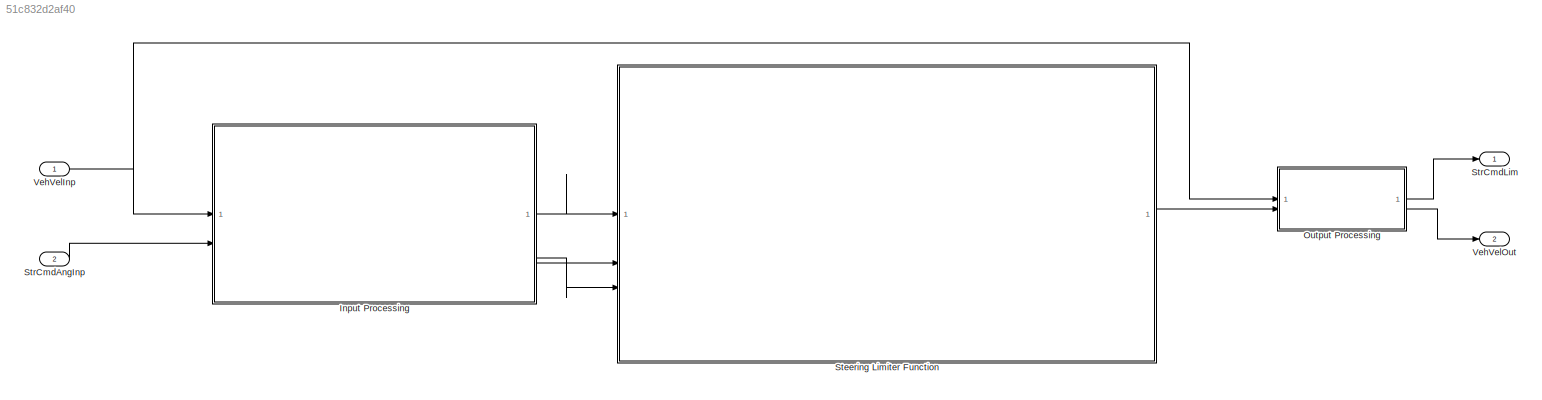
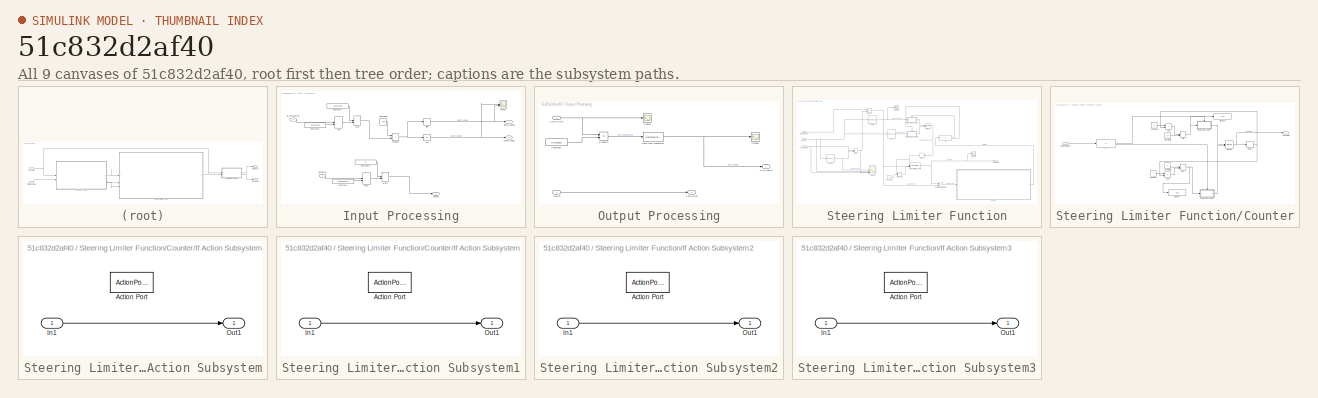
[diagram: thumbnail index - all 9 canvases of the model, root first then tree order]
MODEL slx_51c832d2af40
KIND model
CONFIG AbsTol = auto
CONFIG EnableMultiTasking = off
CONFIG FixedStep = 0.01
CONFIG InitFcn = , if any(exist('rtifpga_mdlclblib', 'file') ~= 0), rtifpga_mdlclblib('Init', bdroot); end,\n, if any(exist('dsmpb_private', 'file') ~= 0), dsmpb_private('dsmpb_mdlclblib', 'Init', bdroot); end,\n
CONFIG MaxStep = auto
CONFIG MinStep = auto
CONFIG PostLoadFcn = if any(exist('dsrtsu_mdlpostloadfcn', 'file') ~= 0), dsrtsu_mdlpostloadfcn('Execute', bdroot); end
CONFIG RelTol = 1e-3
CONFIG SampleTimeConstraint = Unconstrained
CONFIG SolverName = FixedStepDiscrete
CONFIG StartTime = 0.0
CONFIG StopTime = 1
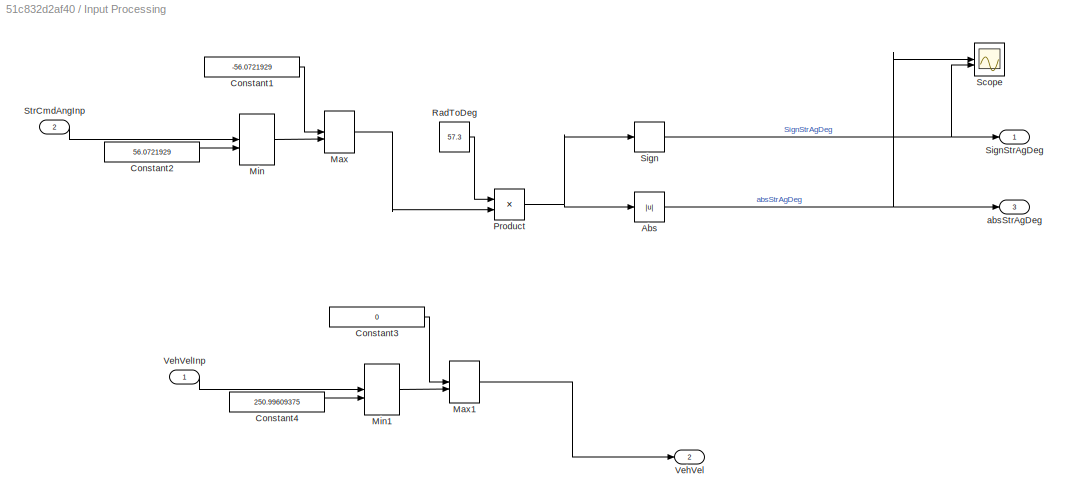
BLOCK [SubSystem] Input Processing
BLOCK [Abs] Input Processing/Abs
  SaturateOnIntegerOverflow = off
BLOCK [Constant] Input Processing/Constant1
  Value = -56.0721929
BLOCK [Constant] Input Processing/Constant2
  Value = 56.0721929
BLOCK [Constant] Input Processing/Constant3
  Value = 0
BLOCK [Constant] Input Processing/Constant4
  Value = 250.99609375
BLOCK [MinMax] Input Processing/Max
  Function = max
  Inputs = 2
BLOCK [MinMax] Input Processing/Max1
  Function = max
  Inputs = 2
BLOCK [MinMax] Input Processing/Min
  Inputs = 2
BLOCK [MinMax] Input Processing/Min1
  Inputs = 2
BLOCK [Product] Input Processing/Product
BLOCK [Constant] Input Processing/RadToDeg
  Value = 57.3
BLOCK [Scope] Input Processing/Scope
  Floating = off
  NumInputPorts = 2
  ScopeSpecificationString = Simulink.scopes.TimeScopeBlockCfg('CurrentConfiguration', extmgr.ConfigurationSet(extmgr.Configuration('Core','General UI',true),extmgr.Configuration('Core','Source UI',true),extmgr.Configuration('Sources','WiredSimulink',true,'DataLoggingVariableName','ScopeData3'),extmgr.Configuration('Visuals','Time Domain',true,'SerializedDisplays',{struct('MinYLimReal','-37.57282','MaxYLimReal','862.42718','Y...<+2206ch>
BLOCK [Signum] Input Processing/Sign
BLOCK [Outport] Input Processing/SignStrAgDeg
BLOCK [Inport] Input Processing/StrCmdAngInp
  Port = 2
BLOCK [Outport] Input Processing/VehVel
  Port = 2
BLOCK [Inport] Input Processing/VehVelInp
BLOCK [Outport] Input Processing/absStrAgDeg
  Port = 3
BLOCK [SubSystem] Output Processing
BLOCK [Inport] Output Processing/CalStrCmd
  Port = 2
BLOCK [Constant] Output Processing/Constant6
  Value = 0.01745329
BLOCK [DataTypeConversion] Output Processing/Data Type Conversion
  RndMeth = Floor
  SaturateOnIntegerOverflow = off
BLOCK [Product] Output Processing/Product3
BLOCK [Scope] Output Processing/Scope2
  Floating = off
  NumInputPorts = 1
  ScopeSpecificationString = Simulink.scopes.TimeScopeBlockCfg('CurrentConfiguration', extmgr.ConfigurationSet(extmgr.Configuration('Core','General UI',true),extmgr.Configuration('Core','Source UI',true),extmgr.Configuration('Sources','WiredSimulink',true,'DataLoggingVariableName','ScopeData2'),extmgr.Configuration('Visuals','Time Domain',true,'SerializedDisplays',{struct('MinYLimReal','-8.9011','MaxYLimReal','80.10992','YLab...<+1459ch>
BLOCK [Scope] Output Processing/Scope8
  Floating = off
  NumInputPorts = 1
  ScopeSpecificationString = Simulink.scopes.TimeScopeBlockCfg('CurrentConfiguration', extmgr.ConfigurationSet(extmgr.Configuration('Core','General UI',true),extmgr.Configuration('Core','Source UI',true),extmgr.Configuration('Sources','WiredSimulink',true,'DataLoggingVariableName','ScopeData1'),extmgr.Configuration('Visuals','Time Domain',true,'SerializedDisplays',{struct('MinYLimReal','-0.15535','MaxYLimReal','1.39818','YLab...<+1457ch>
BLOCK [Outport] Output Processing/StrCmdLim
  NameLocation = right
BLOCK [Inport] Output Processing/VehVel
BLOCK [Outport] Output Processing/VehVelOut
  Port = 2
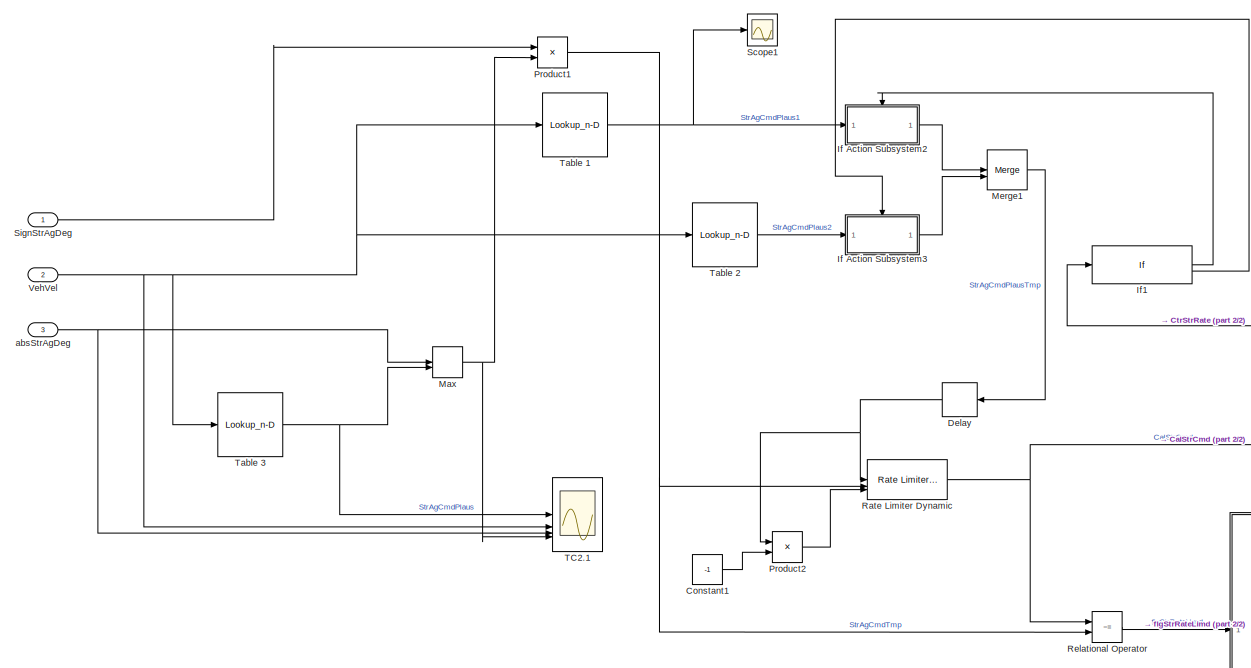
[diagram: Steering Limiter Function - part 1/2, center side, full height]
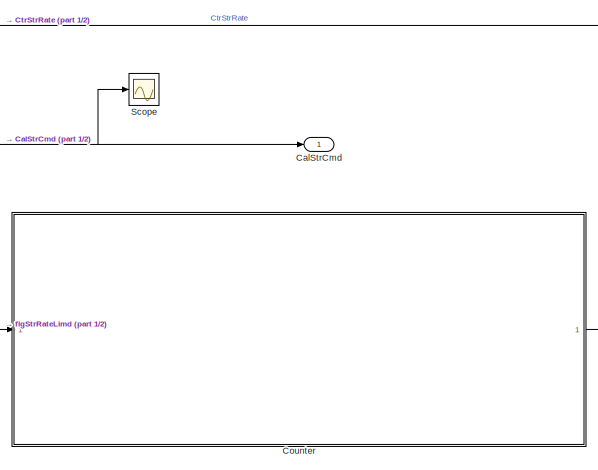
[diagram: Steering Limiter Function - part 2/2, bottom right region]
BLOCK [SubSystem] Steering Limiter Function
BLOCK [Outport] Steering Limiter Function/CalStrCmd
BLOCK [Constant] Steering Limiter Function/Constant1
  Value = -1
BLOCK [SubSystem] Steering Limiter Function/Counter
BLOCK [Sum] Steering Limiter Function/Counter/Add
  IconShape = rectangular
BLOCK [Sum] Steering Limiter Function/Counter/Add1
  IconShape = rectangular
  Inputs = -+
BLOCK [Constant] Steering Limiter Function/Counter/Constant2
BLOCK [Constant] Steering Limiter Function/Counter/Constant3
  Value = 10
BLOCK [Constant] Steering Limiter Function/Counter/Constant4
BLOCK [Constant] Steering Limiter Function/Counter/Constant5
  Value = 0
BLOCK [Outport] Steering Limiter Function/Counter/CtrStrRate
BLOCK [Delay] Steering Limiter Function/Counter/Delay1
  DelayLength = 1
  InputPortMap = u0
BLOCK [Display] Steering Limiter Function/Counter/Display7
  Decimation = 1
BLOCK [Display] Steering Limiter Function/Counter/Display8
  Decimation = 1
BLOCK [If] Steering Limiter Function/Counter/If
  IfExpression = u1 == 1
BLOCK [SubSystem] Steering Limiter Function/Counter/If Action Subsystem
  TreatAsAtomicUnit = on
BLOCK [ActionPort] Steering Limiter Function/Counter/If Action Subsystem/Action Port
  ActionPortLabel = if(u1 == 1)
BLOCK [Inport] Steering Limiter Function/Counter/If Action Subsystem/In1
BLOCK [Outport] Steering Limiter Function/Counter/If Action Subsystem/Out1
BLOCK [SubSystem] Steering Limiter Function/Counter/If Action Subsystem1
  TreatAsAtomicUnit = on
BLOCK [ActionPort] Steering Limiter Function/Counter/If Action Subsystem1/Action Port
  ActionPortLabel = else
BLOCK [Inport] Steering Limiter Function/Counter/If Action Subsystem1/In1
BLOCK [Outport] Steering Limiter Function/Counter/If Action Subsystem1/Out1
BLOCK [Merge] Steering Limiter Function/Counter/Merge
BLOCK [MinMax] Steering Limiter Function/Counter/Min
  Inputs = 2
BLOCK [MinMax] Steering Limiter Function/Counter/Min1
  Function = max
  Inputs = 2
BLOCK [Inport] Steering Limiter Function/Counter/flgStrRateLimd
BLOCK [Delay] Steering Limiter Function/Delay
  DelayLength = 1
  InputPortMap = u0
BLOCK [SubSystem] Steering Limiter Function/If Action Subsystem2
  TreatAsAtomicUnit = on
BLOCK [ActionPort] Steering Limiter Function/If Action Subsystem2/Action Port
  ActionPortLabel = if(u1 ~= 10)
BLOCK [Inport] Steering Limiter Function/If Action Subsystem2/In1
BLOCK [Outport] Steering Limiter Function/If Action Subsystem2/Out1
BLOCK [SubSystem] Steering Limiter Function/If Action Subsystem3
  TreatAsAtomicUnit = on
BLOCK [ActionPort] Steering Limiter Function/If Action Subsystem3/Action Port
  ActionPortLabel = else
BLOCK [Inport] Steering Limiter Function/If Action Subsystem3/In1
BLOCK [Outport] Steering Limiter Function/If Action Subsystem3/Out1
BLOCK [If] Steering Limiter Function/If1
  IfExpression = u1 ~= 10
BLOCK [MinMax] Steering Limiter Function/Max
  Inputs = 2
BLOCK [Merge] Steering Limiter Function/Merge1
BLOCK [Product] Steering Limiter Function/Product1
BLOCK [Product] Steering Limiter Function/Product2
BLOCK [Reference] Steering Limiter Function/Rate Limiter Dynamic  REF=simulink/Discontinuities/Rate Limiter
Dynamic
  SourceBlock = simulink/Discontinuities/Rate Limiter\nDynamic
  SourceType = Rate Limiter Dynamic
BLOCK [RelationalOperator] Steering Limiter Function/Relational Operator
  InputSameDT = off
  Operator = ~=
  OutDataTypeStr = boolean
  RndMeth = Simplest
BLOCK [Scope] Steering Limiter Function/Scope
  Floating = off
  NumInputPorts = 1
  ScopeSpecificationString = Simulink.scopes.TimeScopeBlockCfg('CurrentConfiguration', extmgr.ConfigurationSet(extmgr.Configuration('Core','General UI',true),extmgr.Configuration('Core','Source UI',true),extmgr.Configuration('Sources','WiredSimulink',true,'DataLoggingVariableName','ScopeData2'),extmgr.Configuration('Visuals','Time Domain',true),extmgr.Configuration('Tools','Plot Navigation',true),extmgr.Configuration('Tools',...<+40ch>
BLOCK [Scope] Steering Limiter Function/Scope1
  Floating = off
  NumInputPorts = 1
  ScopeSpecificationString = Simulink.scopes.TimeScopeBlockCfg('CurrentConfiguration', extmgr.ConfigurationSet(extmgr.Configuration('Core','General UI',true),extmgr.Configuration('Core','Source UI',true),extmgr.Configuration('Sources','WiredSimulink',true,'DataLoggingVariableName','ScopeData1'),extmgr.Configuration('Visuals','Time Domain',true,'SerializedDisplays',{struct('MinYLimReal','196.80967','MaxYLimReal','396.80967','Y...<+1557ch>
BLOCK [Inport] Steering Limiter Function/SignStrAgDeg
BLOCK [Scope] Steering Limiter Function/TC2.1
  Floating = off
  NumInputPorts = 4
  ScopeSpecificationString = Simulink.scopes.TimeScopeBlockCfg('CurrentConfiguration', extmgr.ConfigurationSet(extmgr.Configuration('Core','General UI',true),extmgr.Configuration('Core','Source UI',true),extmgr.Configuration('Sources','WiredSimulink',true,'DataLoggingVariableName','ScopeData2'),extmgr.Configuration('Visuals','Time Domain',true,'TimeAxisLabels','All','SerializedDisplays',{struct('MinYLimReal','-33.58424','MaxY...<+4023ch>
BLOCK [Lookup_n-D] Steering Limiter Function/Table 1
  BreakpointsForDimension1 = [0;8.04672;16.09344;24.14016;32.18688;40.2336;56.32704;72.42048;88.51392;104.6074]
  ExtrapMethod = Clip
  InputPortMap = u0
  InternalRulePriority = Speed
  NumberOfTableDimensions = 1
  RndMeth = Simplest
  Table = [479.9834;479.9834;462.5181;426.2757;312.5545;267.5176;244.988;214.9901;190.0149;155.0244]
  UseLastTableValue = on
BLOCK [Lookup_n-D] Steering Limiter Function/Table 2
  BreakpointsForDimension1 = [0;8.04672;16.09344;24.14016;32.18688;40.2336;56.32704;72.42048;88.51392;104.6074]
  ExtrapMethod = Clip
  InputPortMap = u0
  InternalRulePriority = Speed
  NumberOfTableDimensions = 1
  RndMeth = Simplest
  Table = [299.4082;275.0638;238.546;214.2657;202.2014;178.0706;58.8714;11.773;8.2405;5.8876]
  UseLastTableValue = on
BLOCK [Lookup_n-D] Steering Limiter Function/Table 3
  BreakpointsForDimension1 = [0;10.00008;20.00016;29.99988;39.99996;50;60.00012;69.99984;79.99992;90]
  ExtrapMethod = Clip
  InputPortMap = u0
  InternalRulePriority = Speed
  NumberOfTableDimensions = 1
  RndMeth = Simplest
  Table = [943.4003;943.4003;776.0209;378.4347;221.4865;148.229;121.0109;100.0285;85.4008;74.9696]
  UseLastTableValue = on
BLOCK [Inport] Steering Limiter Function/VehVel
  Port = 2
BLOCK [Inport] Steering Limiter Function/absStrAgDeg
  Port = 3
BLOCK [Inport] StrCmdAngInp
  Port = 2
BLOCK [Outport] StrCmdLim
BLOCK [Inport] VehVelInp
BLOCK [Outport] VehVelOut
  Port = 2
NET Input Processing/Abs:1 -> Input Processing/Scope:1, Input Processing/absStrAgDeg:1
LINE Input Processing/Constant1:1 -> Input Processing/Max:1
LINE Input Processing/Constant2:1 -> Input Processing/Min:2
LINE Input Processing/Constant3:1 -> Input Processing/Max1:1
LINE Input Processing/Constant4:1 -> Input Processing/Min1:2
LINE Input Processing/Max1:1 -> Input Processing/VehVel:1
LINE Input Processing/Max:1 -> Input Processing/Product:2
LINE Input Processing/Min1:1 -> Input Processing/Max1:2
LINE Input Processing/Min:1 -> Input Processing/Max:2
NET Input Processing/Product:1 -> Input Processing/Abs:1, Input Processing/Sign:1
LINE Input Processing/RadToDeg:1 -> Input Processing/Product:1
NET Input Processing/Sign:1 -> Input Processing/Scope:2, Input Processing/SignStrAgDeg:1
LINE Input Processing/StrCmdAngInp:1 -> Input Processing/Min:1
LINE Input Processing/VehVelInp:1 -> Input Processing/Min1:1
LINE Input Processing:1 -> Steering Limiter Function:1
LINE Input Processing:2 -> Steering Limiter Function:2
LINE Input Processing:3 -> Steering Limiter Function:3
NET Output Processing/CalStrCmd:1 -> Output Processing/Product3:1, Output Processing/Scope2:1
LINE Output Processing/Constant6:1 -> Output Processing/Product3:2
NET Output Processing/Data Type Conversion:1 -> Output Processing/Scope8:1, Output Processing/StrCmdLim:1
LINE Output Processing/Product3:1 -> Output Processing/Data Type Conversion:1
LINE Output Processing/VehVel:1 -> Output Processing/VehVelOut:1
LINE Output Processing:1 -> StrCmdLim:1
LINE Output Processing:2 -> VehVelOut:1
LINE Steering Limiter Function/Constant1:1 -> Steering Limiter Function/Product2:2
LINE Steering Limiter Function/Counter/Add1:1 -> Steering Limiter Function/Counter/Min1:2
LINE Steering Limiter Function/Counter/Add:1 -> Steering Limiter Function/Counter/Min:1
LINE Steering Limiter Function/Counter/Constant2:1 -> Steering Limiter Function/Counter/Add:1
LINE Steering Limiter Function/Counter/Constant3:1 -> Steering Limiter Function/Counter/Min:2
LINE Steering Limiter Function/Counter/Constant4:1 -> Steering Limiter Function/Counter/Add1:1
LINE Steering Limiter Function/Counter/Constant5:1 -> Steering Limiter Function/Counter/Min1:1
NET Steering Limiter Function/Counter/Delay1:1 -> Steering Limiter Function/Counter/Add1:2, Steering Limiter Function/Counter/Add:2
LINE Steering Limiter Function/Counter/If Action Subsystem/In1:1 -> Steering Limiter Function/Counter/If Action Subsystem/Out1:1
LINE Steering Limiter Function/Counter/If Action Subsystem1/In1:1 -> Steering Limiter Function/Counter/If Action Subsystem1/Out1:1
LINE Steering Limiter Function/Counter/If Action Subsystem1:1 -> Steering Limiter Function/Counter/Merge:2
LINE Steering Limiter Function/Counter/If Action Subsystem:1 -> Steering Limiter Function/Counter/Merge:1
LINE Steering Limiter Function/Counter/If:1 -> Steering Limiter Function/Counter/If Action Subsystem:ifaction
LINE Steering Limiter Function/Counter/If:2 -> Steering Limiter Function/Counter/If Action Subsystem1:ifaction
NET Steering Limiter Function/Counter/Merge:1 -> Steering Limiter Function/Counter/CtrStrRate:1, Steering Limiter Function/Counter/Delay1:1
NET Steering Limiter Function/Counter/Min1:1 -> Steering Limiter Function/Counter/Display7:1, Steering Limiter Function/Counter/If Action Subsystem1:1
NET Steering Limiter Function/Counter/Min:1 -> Steering Limiter Function/Counter/Display8:1, Steering Limiter Function/Counter/If Action Subsystem:1
LINE Steering Limiter Function/Counter/flgStrRateLimd:1 -> Steering Limiter Function/Counter/If:1
LINE Steering Limiter Function/Counter:1 -> Steering Limiter Function/If1:1
NET Steering Limiter Function/Delay:1 -> Steering Limiter Function/Product2:1, Steering Limiter Function/Rate Limiter Dynamic:1
LINE Steering Limiter Function/If Action Subsystem2/In1:1 -> Steering Limiter Function/If Action Subsystem2/Out1:1
LINE Steering Limiter Function/If Action Subsystem2:1 -> Steering Limiter Function/Merge1:1
LINE Steering Limiter Function/If Action Subsystem3/In1:1 -> Steering Limiter Function/If Action Subsystem3/Out1:1
LINE Steering Limiter Function/If Action Subsystem3:1 -> Steering Limiter Function/Merge1:2
LINE Steering Limiter Function/If1:1 -> Steering Limiter Function/If Action Subsystem2:ifaction
LINE Steering Limiter Function/If1:2 -> Steering Limiter Function/If Action Subsystem3:ifaction
NET Steering Limiter Function/Max:1 -> Steering Limiter Function/Product1:2, Steering Limiter Function/TC2.1:4
LINE Steering Limiter Function/Merge1:1 -> Steering Limiter Function/Delay:1
NET Steering Limiter Function/Product1:1 -> Steering Limiter Function/Rate Limiter Dynamic:2, Steering Limiter Function/Relational Operator:2
LINE Steering Limiter Function/Product2:1 -> Steering Limiter Function/Rate Limiter Dynamic:3
NET Steering Limiter Function/Rate Limiter Dynamic:1 -> Steering Limiter Function/CalStrCmd:1, Steering Limiter Function/Relational Operator:1, Steering Limiter Function/Scope:1
LINE Steering Limiter Function/Relational Operator:1 -> Steering Limiter Function/Counter:1
LINE Steering Limiter Function/SignStrAgDeg:1 -> Steering Limiter Function/Product1:1
NET Steering Limiter Function/Table 1:1 -> Steering Limiter Function/If Action Subsystem2:1, Steering Limiter Function/Scope1:1
LINE Steering Limiter Function/Table 2:1 -> Steering Limiter Function/If Action Subsystem3:1
NET Steering Limiter Function/Table 3:1 -> Steering Limiter Function/Max:2, Steering Limiter Function/TC2.1:1
NET Steering Limiter Function/VehVel:1 -> Steering Limiter Function/TC2.1:2, Steering Limiter Function/Table 1:1, Steering Limiter Function/Table 2:1, Steering Limiter Function/Table 3:1
NET Steering Limiter Function/absStrAgDeg:1 -> Steering Limiter Function/Max:1, Steering Limiter Function/TC2.1:3
LINE Steering Limiter Function:1 -> Output Processing:2
LINE StrCmdAngInp:1 -> Input Processing:2
NET VehVelInp:1 -> Input Processing:1, Output Processing:1
note: NET lines group one-source signal fan-out (src -> all destinations, sorted); 1:1 wires keep LINE
